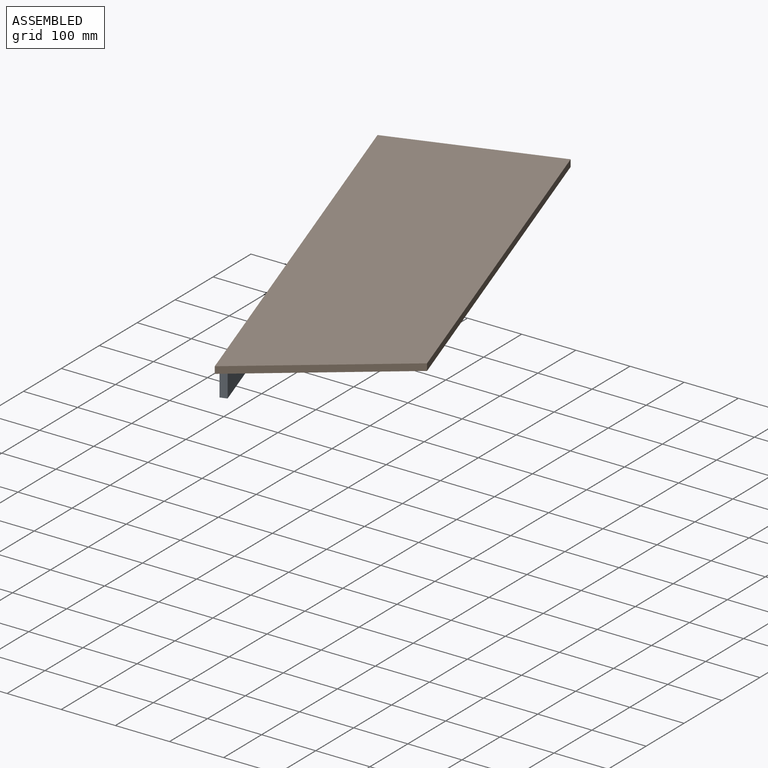
[diagram: assembled view]
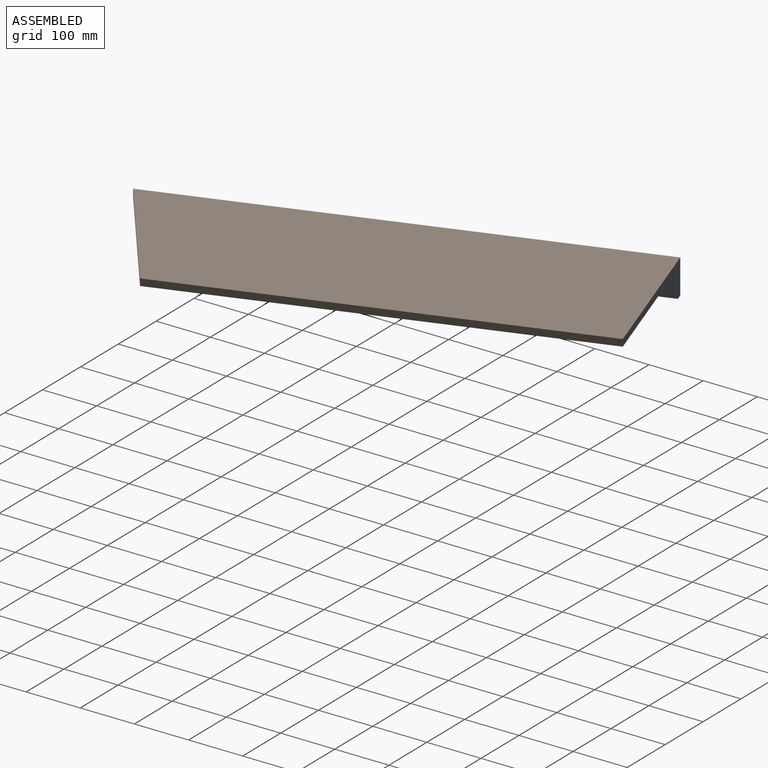
[diagram: assembled view, second angle]
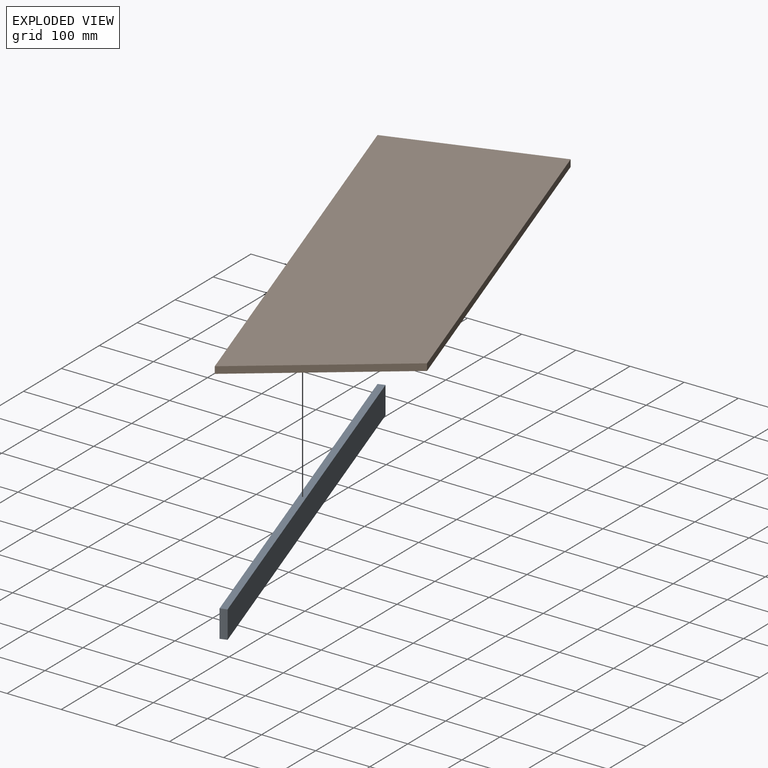
[diagram: exploded view]
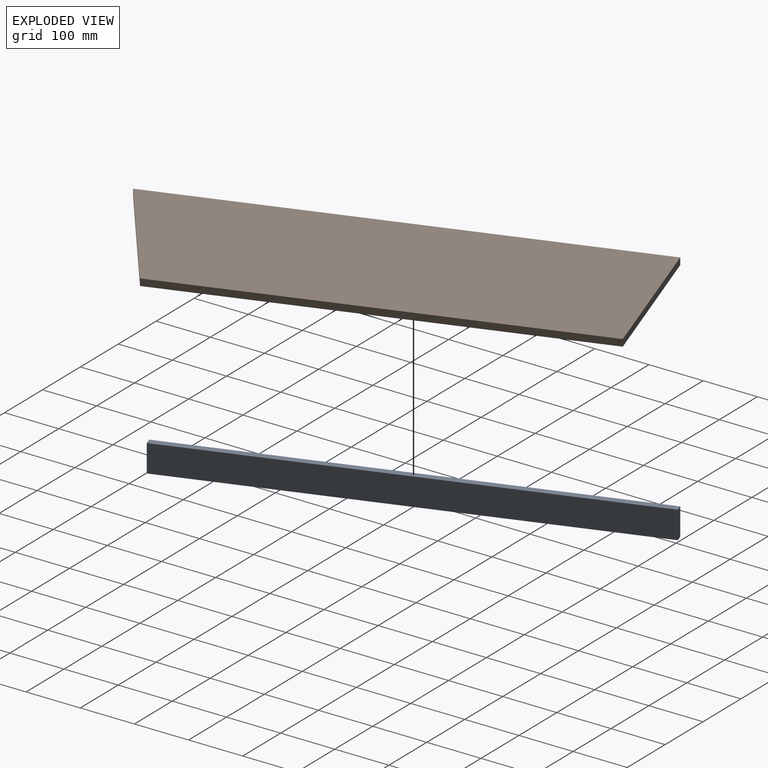
[diagram: exploded view, second angle]
ASSEMBLY  parts=2 mates=3
PART A: 6 faces, bbox 12.7x838.2x50.8 mm
  f0: plane 50.8x12.7mm, normal (0,-1,0), area 645.2mm2, adj f1,f3,f4,f5
  f1: plane 838.2x50.8mm, normal (1,0,0), area 42580.6mm2, adj f0,f2,f4,f5
  f2: plane 50.8x12.7mm, normal (0,1,0), area 645.2mm2, adj f1,f3,f4,f5
  f3: plane 838.2x50.8mm, normal (-1,0,0), area 42580.6mm2, adj f0,f2,f4,f5
  f4: plane 838.2x12.7mm, normal (0,0,1), area 10645.1mm2, adj f0,f1,f2,f3
  f5: plane 838.2x12.7mm, normal (0,0,-1), area 10645.1mm2, adj f0,f1,f2,f3
PART B: 6 faces, bbox 304.8x863.6x12.7 mm
  f0: plane 304.8x101.6mm, normal (0.32,-0.95,0), area 4080.4mm2, adj f1,f3,f4,f5
  f1: plane 762x12.7mm, normal (1,0,0), area 9677.4mm2, adj f0,f2,f4,f5
  f2: plane 304.8x12.7mm, normal (0,1,0), area 3871mm2, adj f1,f3,f4,f5
  f3: plane 863.6x12.7mm, normal (-1,0,0), area 10967.7mm2, adj f0,f2,f4,f5
  f4: plane 863.6x304.8mm, normal (0,0,1), area 247741.4mm2, adj f0,f1,f2,f3
  f5: plane 863.6x304.8mm, normal (0,0,-1), area 247741.4mm2, adj f0,f1,f2,f3
PLACE A rot(axis=(0,0,1),18.4deg) t=(-82.29,15.82,-71.1)mm
PLACE B rot(axis=(0,0,1),18.4deg) t=(-94.34,11.81,-20.3)mm
MATE planar A.f4 <-> B.f5  axis (0,0,1) through (50.24,-381.77,-20.3)mm
MATE planar B.f3 <-> A.f3  axis (-0.95,-0.32,0) through (42.21,-397.84,-13.95)mm
MATE planar B.f2 <-> A.f2  axis (-0.32,0.95,0) through (50.24,60,-13.95)mm
